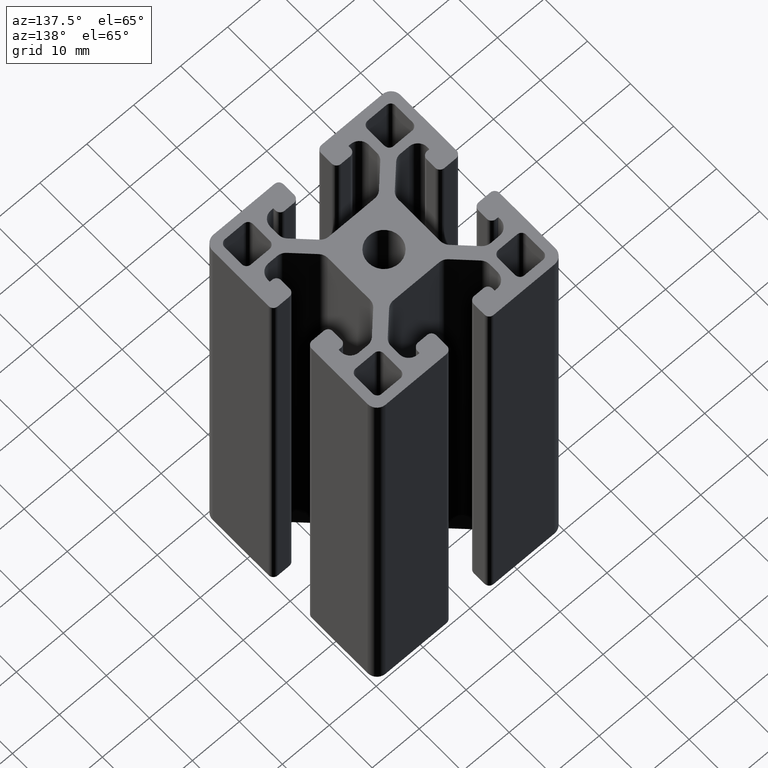
[diagram: clean part render]
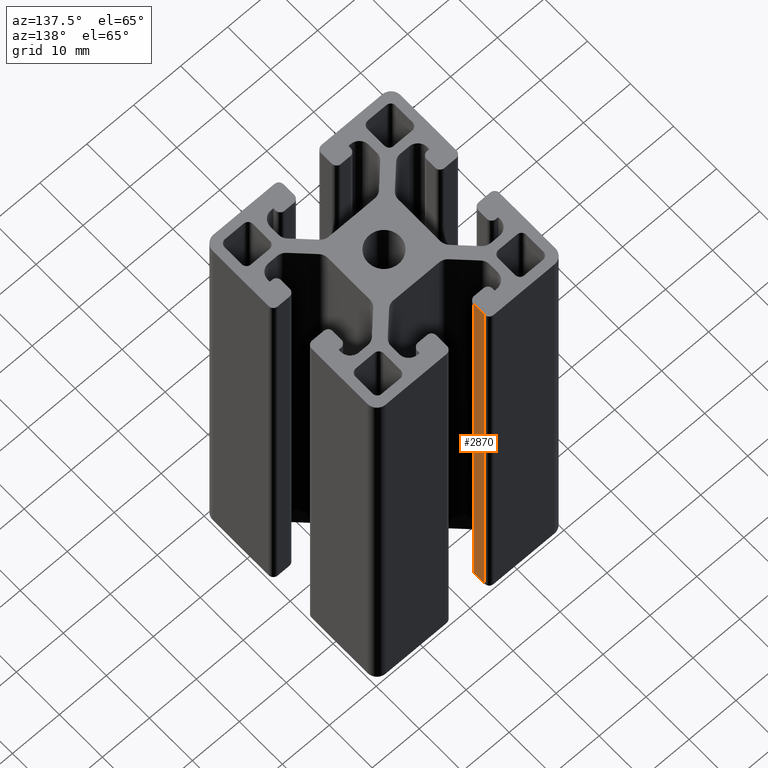
[diagram: same view with one face highlighted and labeled with its STEP entity id]
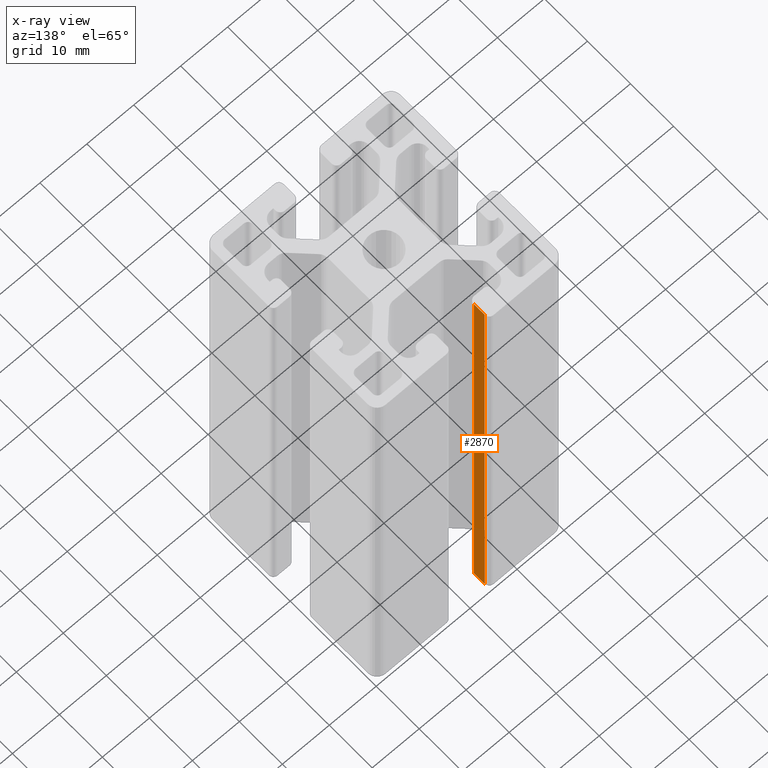
[diagram: x-ray of the same camera — body ghosted, the highlighted face saturated]
A machine part, auxiliary view. The second image highlights one B-rep face of the part: STEP entity #2870.
The next image is the same camera in x-ray: the body ghosted, the highlighted face saturated — about 0% of this face is hidden behind the body in this view.
In plain terms, the highlighted planar face has unit normal (-1, 0, 0).
Its self-contained STEP definition (entity closure, byte-faithful):
#303=FACE_OUTER_BOUND('',#451,.T.);
#451=EDGE_LOOP('',(#2132,#2133,#2134,#2135));
#680=LINE('',#4527,#976);
#681=LINE('',#4530,#977);
#682=LINE('',#4532,#978);
#683=LINE('',#4533,#979);
#976=VECTOR('',#3654,100.);
#977=VECTOR('',#3657,2.50000399189769);
#978=VECTOR('',#3658,2.50000399189769);
#979=VECTOR('',#3659,100.);
#1272=VERTEX_POINT('',#4523);
#1273=VERTEX_POINT('',#4525);
#1274=VERTEX_POINT('',#4529);
#1275=VERTEX_POINT('',#4531);
#1630=EDGE_CURVE('',#1273,#1272,#680,.T.);
#1631=EDGE_CURVE('',#1272,#1274,#681,.T.);
#1632=EDGE_CURVE('',#1275,#1273,#682,.T.);
#1633=EDGE_CURVE('',#1275,#1274,#683,.T.);
#2132=ORIENTED_EDGE('',*,*,#1631,.F.);
#2133=ORIENTED_EDGE('',*,*,#1630,.F.);
#2134=ORIENTED_EDGE('',*,*,#1632,.F.);
#2135=ORIENTED_EDGE('',*,*,#1633,.T.);
#2758=PLANE('',#3087);
#2870=ADVANCED_FACE('',(#303),#2758,.F.);
#3087=AXIS2_PLACEMENT_3D('',#4528,#3655,#3656);
#3654=DIRECTION('',(0.,0.,1.));
#3655=DIRECTION('center_axis',(-1.,3.55270800598174E-15,0.));
#3656=DIRECTION('ref_axis',(-3.5527136788005E-15,-1.,0.));
#3657=DIRECTION('',(3.55270800598174E-15,1.,0.));
#3658=DIRECTION('',(-3.55270800598174E-15,-1.,0.));
#3659=DIRECTION('',(0.,0.,1.));
#4523=CARTESIAN_POINT('',(-4.,16.4999980040512,100.));
#4525=CARTESIAN_POINT('',(-4.,16.4999980040512,0.));
#4527=CARTESIAN_POINT('',(-4.,16.4999980040512,0.));
#4528=CARTESIAN_POINT('Origin',(-3.99999999999999,19.0000019959488,0.));
#4529=CARTESIAN_POINT('',(-3.99999999999999,19.0000019959488,100.));
#4530=CARTESIAN_POINT('',(-4.00000000000002,9.50000099797443,100.));
#4531=CARTESIAN_POINT('',(-3.99999999999999,19.0000019959488,0.));
#4532=CARTESIAN_POINT('',(-4.00000000000002,9.50000099797443,0.));
#4533=CARTESIAN_POINT('',(-3.99999999999999,19.0000019959488,0.));